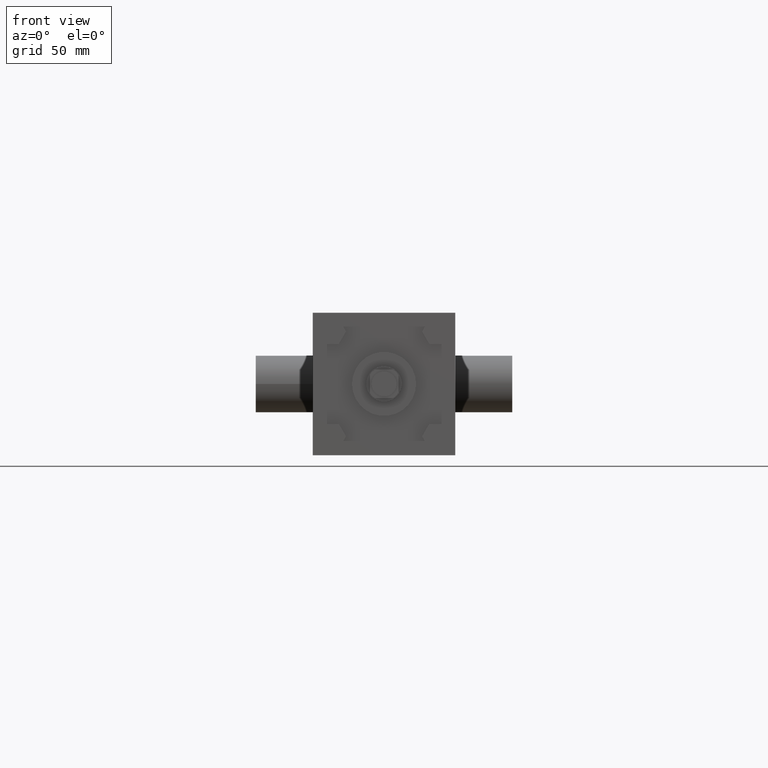
[diagram: clean part render]
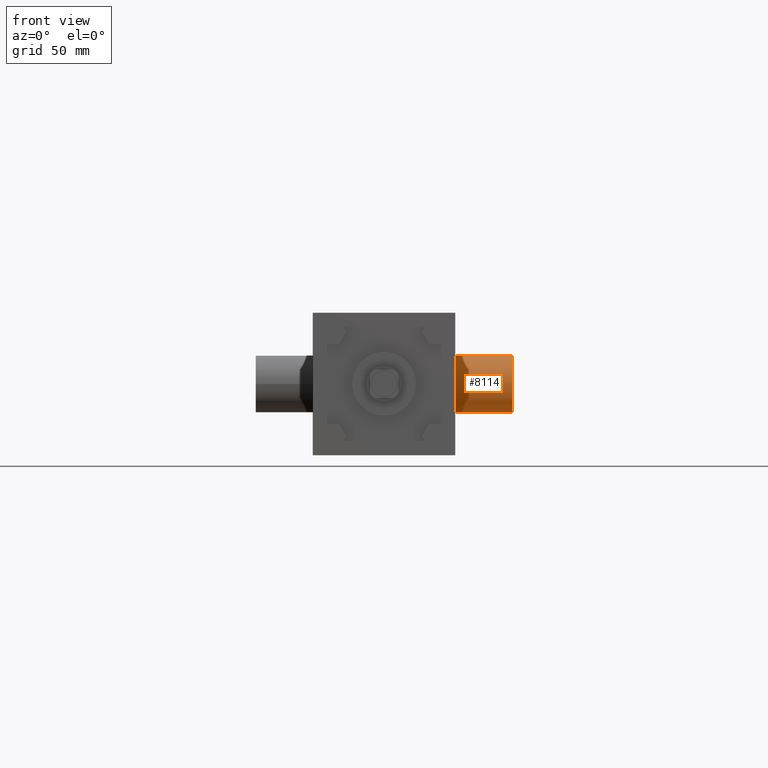
[diagram: same view with one face highlighted and labeled with its STEP entity id]
A machine part, front view. The second image highlights one B-rep face of the part: STEP entity #8114.
In plain terms, the highlighted cylindrical surface (bore or boss wall) has radius 12.6746 mm, axis along (1, 0, 0).
Its self-contained STEP definition (entity closure, byte-faithful):
#4744=EDGE_CURVE('',#4750,#4750,#4745,.T.);
#4745=CIRCLE('',#4746,1.267460000E+001);
#4746=AXIS2_PLACEMENT_3D('',#4747,#4748,#4749);
#4747=CARTESIAN_POINT('',(3.175000000E+001,2.571750000E+002,0.000000000E+000));
#4748=DIRECTION('',(-1.0E+000,0.0E+000,0.0E+000));
#4749=DIRECTION('',(0.0E+000,1.0E+000,0.0E+000));
#4750=VERTEX_POINT('',#4751);
#4751=CARTESIAN_POINT('',(3.175000000E+001,2.698496000E+002,0.000000000E+000));
#4757=FACE_OUTER_BOUND('',#4759,.T.);
#4758=FACE_BOUND('',#4760,.T.);
#4759=EDGE_LOOP('',(#4761));
#4760=EDGE_LOOP('',(#4770));
#4761=ORIENTED_EDGE('',*,*,#4762,.T.);
#4762=EDGE_CURVE('',#4768,#4768,#4763,.T.);
#4763=CIRCLE('',#4764,1.267460000E+001);
#4764=AXIS2_PLACEMENT_3D('',#4765,#4766,#4767);
#4765=CARTESIAN_POINT('',(5.715000000E+001,2.571750000E+002,0.000000000E+000));
#4766=DIRECTION('',(-1.0E+000,0.0E+000,0.0E+000));
#4767=DIRECTION('',(0.0E+000,1.0E+000,0.0E+000));
#4768=VERTEX_POINT('',#4769);
#4769=CARTESIAN_POINT('',(5.715000000E+001,2.698496000E+002,0.000000000E+000));
#4770=ORIENTED_EDGE('',*,*,#4744,.F.);
#4771=CYLINDRICAL_SURFACE('',#4772,1.267460000E+001);
#4772=AXIS2_PLACEMENT_3D('',#4773,#4774,#4775);
#4773=CARTESIAN_POINT('',(5.715000000E+001,2.571750000E+002,0.000000000E+000));
#4774=DIRECTION('',(1.0E+000,0.0E+000,0.0E+000));
#4775=DIRECTION('',(0.0E+000,0.0E+000,-1.0E+000));
#8114=ADVANCED_FACE('',(#4757,#4758),#4771,.F.);